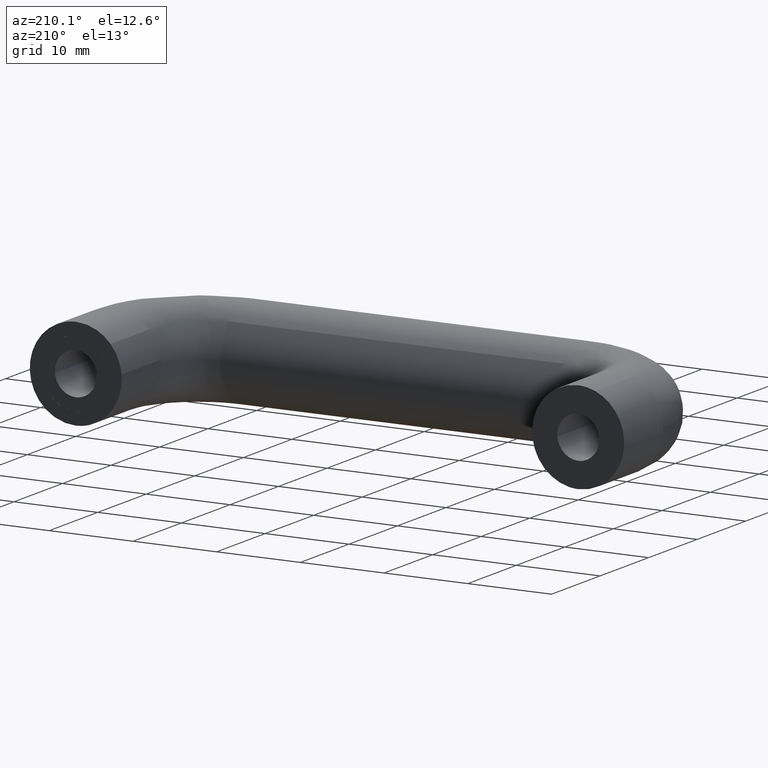
[diagram: clean part render]
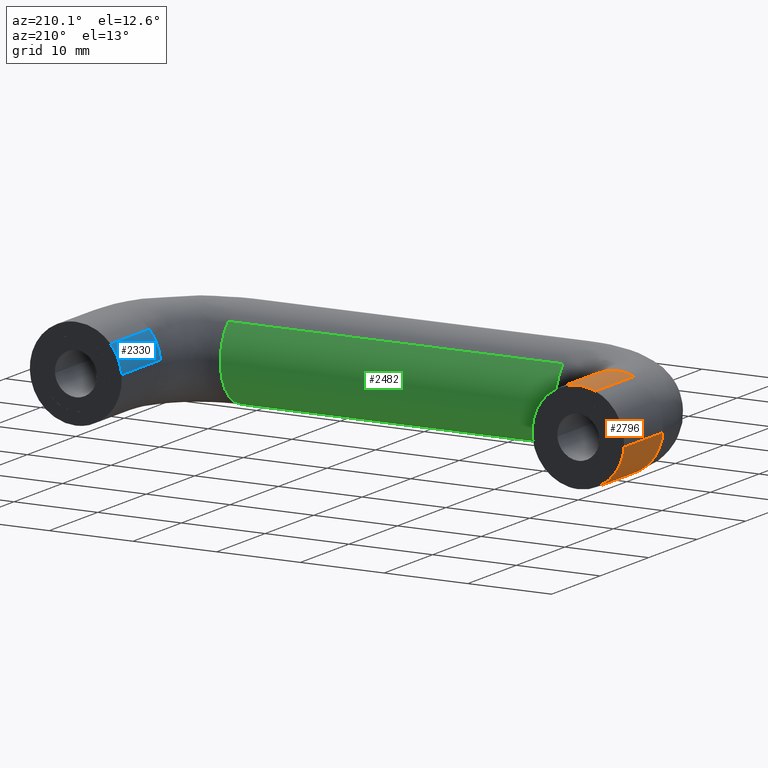
[diagram: same view with three faces highlighted in distinct colors, each labeled with its STEP entity id]
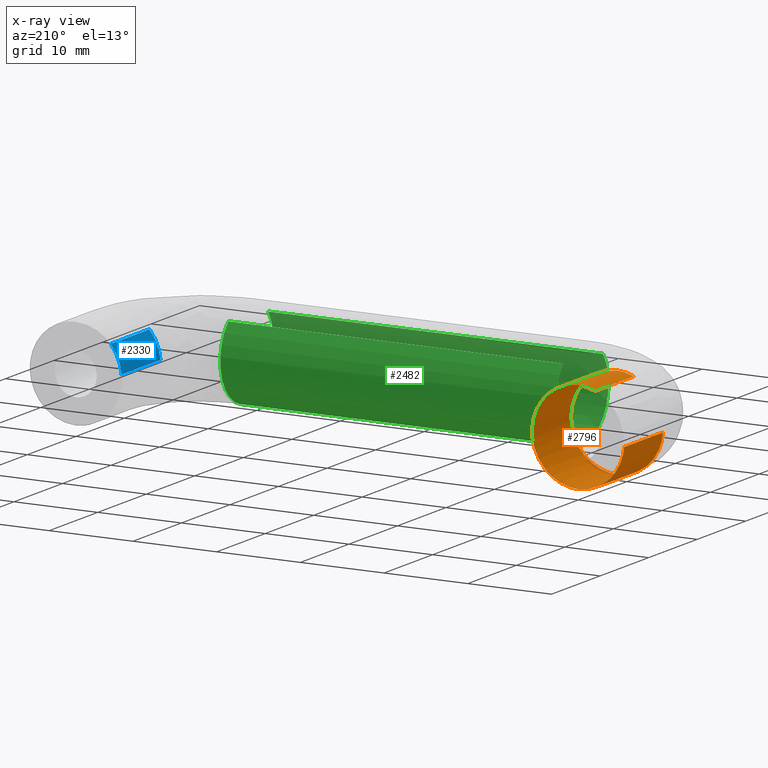
[diagram: x-ray of the same camera — body ghosted, the three highlighted faces saturated]
A machine part, auxiliary view with three faces highlighted in distinct colors.
The next image is the same camera in x-ray (body ghosted, the three faces saturated) — at least one of them is partly hidden behind the body in this view.
Their STEP definitions:

[orange] entity #2796 — the highlighted face is a freeform B-spline surface patch.
#2595=CARTESIAN_POINT('',(-5.483045884350225,-7.999999999999915,-0.431518052995605));
#2596=VERTEX_POINT('',#2595);
#2597=CARTESIAN_POINT('',(-2.023463087210743,-8.0,5.114254308762477));
#2598=VERTEX_POINT('',#2597);
#2614=CARTESIAN_POINT('',(-2.023463087210743,2.756342E-016,5.114254308762477));
#2615=VERTEX_POINT('',#2614);
#2616=CARTESIAN_POINT('',(-2.023463087210743,2.756342E-016,5.114254308762477));
#2617=CARTESIAN_POINT('',(-2.023463087210743,-8.0,5.114254308762477));
#2618=QUASI_UNIFORM_CURVE('',1,(#2616,#2617),.UNSPECIFIED.,.F.,.U.);
#2619=EDGE_CURVE('',#2615,#2598,#2618,.T.);
#2621=CARTESIAN_POINT('',(-5.483045877592216,-1.942890E-016,-0.431518138867010));
#2622=VERTEX_POINT('',#2621);
#2638=CARTESIAN_POINT('',(-5.483045877592216,-1.942890E-016,-0.431518138867010));
#2639=CARTESIAN_POINT('',(-5.483045884350225,-7.999999999999915,-0.431518052995605));
#2640=QUASI_UNIFORM_CURVE('',1,(#2638,#2639),.UNSPECIFIED.,.F.,.U.);
#2641=EDGE_CURVE('',#2622,#2596,#2640,.T.);
#2646=CARTESIAN_POINT('',(-5.483045335532202,0.200000000013632,-0.431525026503147));
#2647=CARTESIAN_POINT('',(-5.051520309029055,0.200000000013632,-5.914570362035350));
#2648=CARTESIAN_POINT('',(0.431525026503147,0.200000000013632,-5.483045335532202));
#2649=CARTESIAN_POINT('',(5.914570362035350,0.200000000013632,-5.051520309029055));
#2650=CARTESIAN_POINT('',(5.483045335532202,0.200000000013632,0.431525026503147));
#2651=CARTESIAN_POINT('',(5.051520309029055,0.200000000013632,5.914570362035350));
#2652=CARTESIAN_POINT('',(-0.431525026503147,0.200000000013632,5.483045335532202));
#2653=CARTESIAN_POINT('',(-1.255194154597745,0.200000000013632,5.418221169292411));
#2654=CARTESIAN_POINT('',(-2.023463087202897,0.200000000013632,5.114254308765579));
#2655=CARTESIAN_POINT('',(-5.483045335532202,-8.205000000559247,-0.431525026503147));
#2656=CARTESIAN_POINT('',(-5.051520309029055,-8.205000000559247,-5.914570362035350));
#2657=CARTESIAN_POINT('',(0.431525026503147,-8.205000000559247,-5.483045335532202));
#2658=CARTESIAN_POINT('',(5.914570362035350,-8.205000000559247,-5.051520309029055));
#2659=CARTESIAN_POINT('',(5.483045335532202,-8.205000000559247,0.431525026503147));
#2660=CARTESIAN_POINT('',(5.051520309029055,-8.205000000559247,5.914570362035350));
#2661=CARTESIAN_POINT('',(-0.431525026503147,-8.205000000559247,5.483045335532202));
#2662=CARTESIAN_POINT('',(-1.255194154597745,-8.205000000559247,5.418221169292411));
#2663=CARTESIAN_POINT('',(-2.023463087202897,-8.205000000559245,5.114254308765579));
#2671=(BOUNDED_SURFACE()B_SPLINE_SURFACE(2,1,((#2646,#2655),(#2647,#2656),(#2648,#2657),(#2649,#2658),(#2650,#2659),(#2651,#2660),(#2652,#2661),(#2653,#2662),(#2654,#2663)),.UNSPECIFIED.,.F.,.F.,.U.)B_SPLINE_SURFACE_WITH_KNOTS((3,2,2,2,3),(2,2),(0.0,9.112698372208087,18.225396744416170,27.338095116624260,29.160634791065881),(0.0,8.405000000572880),.UNSPECIFIED.)GEOMETRIC_REPRESENTATION_ITEM()RATIONAL_B_SPLINE_SURFACE(((1.0,1.0),(0.707106781186548,0.707106781186548),(1.0,1.0),(0.707106781186548,0.707106781186548),(1.0,1.0),(0.707106781186548,0.707106781186548),(1.0,1.0),(0.941421356237310,0.941421356237310),(0.906274169979695,0.906274169979695)))REPRESENTATION_ITEM('')SURFACE());
#2672=CARTESIAN_POINT('',(0.0,-8.0,5.500000000000000));
#2673=VERTEX_POINT('',#2672);
#2674=CARTESIAN_POINT('',(-2.023463087210743,-8.000000000000002,5.114254308762477));
#2675=CARTESIAN_POINT('',(-1.048500125959676,-8.0,5.499999999999999));
#2676=CARTESIAN_POINT('',(0.0,-8.0,5.500000000000000));
#2684=(BOUNDED_CURVE()B_SPLINE_CURVE(2,(#2674,#2675,#2676),.UNSPECIFIED.,.F.,.U.)B_SPLINE_CURVE_WITH_KNOTS((3,3),(0.437532549938979,0.500000000000000),.UNSPECIFIED.)CURVE()GEOMETRIC_REPRESENTATION_ITEM()RATIONAL_B_SPLINE_CURVE((0.890203187500792,0.926814829922236,1.0))REPRESENTATION_ITEM(''));
#2685=EDGE_CURVE('',#2598,#2673,#2684,.T.);
#2686=ORIENTED_EDGE('',*,*,#2685,.T.);
#2687=CARTESIAN_POINT('',(0.069113220069145,-8.000000000545274,5.499565743112056));
#2688=VERTEX_POINT('',#2687);
#2689=CARTESIAN_POINT('',(0.0,-8.0,5.500000000000000));
#2690=CARTESIAN_POINT('',(0.034557974666195,-8.0,5.500000000000000));
#2691=CARTESIAN_POINT('',(0.069113220069145,-8.000000000545274,5.499565743112056));
#2699=(BOUNDED_CURVE()B_SPLINE_CURVE(2,(#2689,#2690,#2691),.UNSPECIFIED.,.F.,.U.)B_SPLINE_CURVE_WITH_KNOTS((3,3),(0.500000000000000,0.502215704123727),.UNSPECIFIED.)CURVE()GEOMETRIC_REPRESENTATION_ITEM()RATIONAL_B_SPLINE_CURVE((1.0,0.997404141149054,0.994854295539392))REPRESENTATION_ITEM(''));
#2700=EDGE_CURVE('',#2673,#2688,#2699,.T.);
#2701=ORIENTED_EDGE('',*,*,#2700,.T.);
#2702=CARTESIAN_POINT('',(5.486611206121655,-8.000000000064009,-0.383532883675296));
#2703=VERTEX_POINT('',#2702);
#2704=CARTESIAN_POINT('',(0.069113220069145,-8.000000000545274,5.499565743112056));
#2705=CARTESIAN_POINT('',(5.500000000000001,-8.000000000000002,5.431315613086350));
#2706=CARTESIAN_POINT('',(5.500000000000000,-8.0,0.0));
#2707=CARTESIAN_POINT('',(5.500000000000000,-8.0,-0.192000137321335));
#2708=CARTESIAN_POINT('',(5.486611206121656,-8.000000000064009,-0.383532883675296));
#2716=(BOUNDED_CURVE()B_SPLINE_CURVE(2,(#2704,#2705,#2706,#2707,#2708),.UNSPECIFIED.,.F.,.U.)B_SPLINE_CURVE_WITH_KNOTS((3,2,3),(0.502215704123726,0.750000000000000,0.762166313465516),.UNSPECIFIED.)CURVE()GEOMETRIC_REPRESENTATION_ITEM()RATIONAL_B_SPLINE_CURVE((0.994854295539394,0.709702640037493,1.0,0.985746277151966,0.972879876385690))REPRESENTATION_ITEM(''));
#2717=EDGE_CURVE('',#2688,#2703,#2716,.T.);
#2718=ORIENTED_EDGE('',*,*,#2717,.T.);
#2719=CARTESIAN_POINT('',(0.0,-8.0,-5.500000000000000));
#2720=VERTEX_POINT('',#2719);
#2721=CARTESIAN_POINT('',(5.486611206121655,-8.000000000064009,-0.383532883675296));
#2722=CARTESIAN_POINT('',(5.128952659946982,-8.0,-5.500000000000000));
#2723=CARTESIAN_POINT('',(0.0,-8.0,-5.500000000000000));
#2731=(BOUNDED_CURVE()B_SPLINE_CURVE(2,(#2721,#2722,#2723),.UNSPECIFIED.,.F.,.U.)B_SPLINE_CURVE_WITH_KNOTS((3,3),(0.762166313465515,1.0),.UNSPECIFIED.)CURVE()GEOMETRIC_REPRESENTATION_ITEM()RATIONAL_B_SPLINE_CURVE((0.972879876385692,0.721360504034580,1.0))REPRESENTATION_ITEM(''));
#2732=EDGE_CURVE('',#2703,#2720,#2731,.T.);
#2733=ORIENTED_EDGE('',*,*,#2732,.T.);
#2734=CARTESIAN_POINT('',(0.0,-8.0,-5.500000000000000));
#2735=CARTESIAN_POINT('',(-5.084154190295137,-8.0,-5.500000000000001));
#2736=CARTESIAN_POINT('',(-5.483045884350226,-7.999999999999915,-0.431518052995605));
#2744=(BOUNDED_CURVE()B_SPLINE_CURVE(2,(#2734,#2735,#2736),.UNSPECIFIED.,.F.,.U.)B_SPLINE_CURVE_WITH_KNOTS((3,3),(0.0,0.236331518655793),.UNSPECIFIED.)CURVE()GEOMETRIC_REPRESENTATION_ITEM()RATIONAL_B_SPLINE_CURVE((1.0,0.723120403175333,0.969723811169684))REPRESENTATION_ITEM(''));
#2745=EDGE_CURVE('',#2720,#2596,#2744,.T.);
#2746=ORIENTED_EDGE('',*,*,#2745,.T.);
#2747=ORIENTED_EDGE('',*,*,#2641,.F.);
#2748=CARTESIAN_POINT('',(0.0,0.0,-5.500000000000000));
#2749=VERTEX_POINT('',#2748);
#2750=CARTESIAN_POINT('',(0.0,0.0,-5.500000000000000));
#2751=CARTESIAN_POINT('',(-5.084154110424680,0.0,-5.499999999999999));
#2752=CARTESIAN_POINT('',(-5.483045877592216,-1.942890E-016,-0.431518138867010));
#2760=(BOUNDED_CURVE()B_SPLINE_CURVE(2,(#2750,#2751,#2752),.UNSPECIFIED.,.F.,.U.)B_SPLINE_CURVE_WITH_KNOTS((3,3),(0.0,0.236331515971069),.UNSPECIFIED.)CURVE()GEOMETRIC_REPRESENTATION_ITEM()RATIONAL_B_SPLINE_CURVE((1.0,0.723120406320684,0.969723805566858))REPRESENTATION_ITEM(''));
#2761=EDGE_CURVE('',#2749,#2622,#2760,.T.);
#2762=ORIENTED_EDGE('',*,*,#2761,.F.);
#2763=CARTESIAN_POINT('',(0.0,0.0,5.500000000000000));
#2764=VERTEX_POINT('',#2763);
#2765=CARTESIAN_POINT('',(0.0,0.0,5.500000000000000));
#2766=CARTESIAN_POINT('',(5.500000000000001,0.0,5.500000000000001));
#2767=CARTESIAN_POINT('',(5.500000000000000,0.0,0.0));
#2768=CARTESIAN_POINT('',(5.500000000000001,0.0,-5.500000000000001));
#2769=CARTESIAN_POINT('',(0.0,0.0,-5.500000000000000));
#2777=(BOUNDED_CURVE()B_SPLINE_CURVE(2,(#2765,#2766,#2767,#2768,#2769),.UNSPECIFIED.,.F.,.U.)B_SPLINE_CURVE_WITH_KNOTS((3,2,3),(0.500000000000000,0.750000000000000,1.0),.UNSPECIFIED.)CURVE()GEOMETRIC_REPRESENTATION_ITEM()RATIONAL_B_SPLINE_CURVE((1.0,0.707106781186548,1.0,0.707106781186548,1.0))REPRESENTATION_ITEM(''));
#2778=EDGE_CURVE('',#2764,#2749,#2777,.T.);
#2779=ORIENTED_EDGE('',*,*,#2778,.F.);
#2780=CARTESIAN_POINT('',(-2.023463087210743,2.756342E-016,5.114254308762477));
#2781=CARTESIAN_POINT('',(-1.048500125959676,0.0,5.499999999999999));
#2782=CARTESIAN_POINT('',(0.0,0.0,5.500000000000000));
#2790=(BOUNDED_CURVE()B_SPLINE_CURVE(2,(#2780,#2781,#2782),.UNSPECIFIED.,.F.,.U.)B_SPLINE_CURVE_WITH_KNOTS((3,3),(0.437532549938979,0.500000000000000),.UNSPECIFIED.)CURVE()GEOMETRIC_REPRESENTATION_ITEM()RATIONAL_B_SPLINE_CURVE((0.890203187500792,0.926814829922236,1.0))REPRESENTATION_ITEM(''));
#2791=EDGE_CURVE('',#2615,#2764,#2790,.T.);
#2792=ORIENTED_EDGE('',*,*,#2791,.F.);
#2793=ORIENTED_EDGE('',*,*,#2619,.T.);
#2794=EDGE_LOOP('',(#2686,#2701,#2718,#2733,#2746,#2747,#2762,#2779,#2792,#2793));
#2795=FACE_OUTER_BOUND('',#2794,.T.);
#2796=ADVANCED_FACE('',(#2795),#2671,.T.);

[blue] entity #2330 — the highlighted face is a freeform B-spline surface patch.
#2143=CARTESIAN_POINT('',(55.850895645994413,-8.000000000000005,3.610392369199177));
#2144=VERTEX_POINT('',#2143);
#2205=CARTESIAN_POINT('',(54.525320908988661,-8.0,0.527151638945815));
#2206=VERTEX_POINT('',#2205);
#2222=CARTESIAN_POINT('',(54.525320908988661,1.387779E-017,0.527151638945817));
#2223=VERTEX_POINT('',#2222);
#2224=CARTESIAN_POINT('',(54.525320908988661,-8.0,0.527151638945815));
#2225=CARTESIAN_POINT('',(54.525320908988661,1.387779E-017,0.527151638945817));
#2226=QUASI_UNIFORM_CURVE('',1,(#2224,#2225),.UNSPECIFIED.,.F.,.U.);
#2227=EDGE_CURVE('',#2206,#2223,#2226,.T.);
#2263=CARTESIAN_POINT('',(55.850895649749503,1.614802E-017,3.610392373514570));
#2264=VERTEX_POINT('',#2263);
#2278=CARTESIAN_POINT('',(55.850895645994413,-8.000000000000005,3.610392369199177));
#2279=CARTESIAN_POINT('',(55.850895649749503,1.614802E-017,3.610392373514570));
#2280=QUASI_UNIFORM_CURVE('',1,(#2278,#2279),.UNSPECIFIED.,.F.,.U.);
#2281=EDGE_CURVE('',#2144,#2264,#2280,.T.);
#2286=CARTESIAN_POINT('',(54.525320908980518,-8.200000000051864,0.527151638861234));
#2287=CARTESIAN_POINT('',(54.694208296636504,-8.200000000051865,2.281114221495737));
#2288=CARTESIAN_POINT('',(55.850895957594979,-8.200000000051865,3.610392727294113));
#2289=CARTESIAN_POINT('',(54.525320908980518,0.205000000001297,0.527151638861234));
#2290=CARTESIAN_POINT('',(54.694208296636504,0.205000000001297,2.281114221495737));
#2291=CARTESIAN_POINT('',(55.850895957594979,0.205000000001297,3.610392727294113));
#2299=(BOUNDED_SURFACE()B_SPLINE_SURFACE(2,1,((#2286,#2289),(#2287,#2290),(#2288,#2291)),.UNSPECIFIED.,.F.,.F.,.U.)B_SPLINE_SURFACE_WITH_KNOTS((3,3),(2,2),(0.0,3.620233990688284),(0.0,8.405000000053162),.UNSPECIFIED.)GEOMETRIC_REPRESENTATION_ITEM()RATIONAL_B_SPLINE_SURFACE(((1.0,1.0),(0.882842712474619,0.882842712474619),(0.859411254969543,0.859411254969543)))REPRESENTATION_ITEM('')SURFACE());
#2300=CARTESIAN_POINT('',(55.850895645994399,-8.000000000000007,3.610392369199176));
#2301=CARTESIAN_POINT('',(54.694208246531517,-8.000000000000002,2.281113700567477));
#2302=CARTESIAN_POINT('',(54.525320908988661,-8.0,0.527151638945815));
#2310=(BOUNDED_CURVE()B_SPLINE_CURVE(2,(#2300,#2301,#2302),.UNSPECIFIED.,.F.,.U.)B_SPLINE_CURVE_WITH_KNOTS((3,3),(0.635463017383206,0.733348904760178),.UNSPECIFIED.)CURVE()GEOMETRIC_REPRESENTATION_ITEM()RATIONAL_B_SPLINE_CURVE((0.854579451612704,0.864178679991225,0.963582689682066))REPRESENTATION_ITEM(''));
#2311=EDGE_CURVE('',#2144,#2206,#2310,.T.);
#2312=ORIENTED_EDGE('',*,*,#2311,.F.);
#2313=ORIENTED_EDGE('',*,*,#2281,.T.);
#2314=CARTESIAN_POINT('',(55.850895649749503,1.614802E-017,3.610392373514570));
#2315=CARTESIAN_POINT('',(54.694208247136061,0.0,2.281113706846024));
#2316=CARTESIAN_POINT('',(54.525320908988661,1.387779E-017,0.527151638945817));
#2324=(BOUNDED_CURVE()B_SPLINE_CURVE(2,(#2314,#2315,#2316),.UNSPECIFIED.,.F.,.U.)B_SPLINE_CURVE_WITH_KNOTS((3,3),(0.635463017068957,0.733348904760177),.UNSPECIFIED.)CURVE()GEOMETRIC_REPRESENTATION_ITEM()RATIONAL_B_SPLINE_CURVE((0.854579451551070,0.864178679672103,0.963582689682066))REPRESENTATION_ITEM(''));
#2325=EDGE_CURVE('',#2264,#2223,#2324,.T.);
#2326=ORIENTED_EDGE('',*,*,#2325,.T.);
#2327=ORIENTED_EDGE('',*,*,#2227,.F.);
#2328=EDGE_LOOP('',(#2312,#2313,#2326,#2327));
#2329=FACE_OUTER_BOUND('',#2328,.T.);
#2330=ADVANCED_FACE('',(#2329),#2299,.T.);

[green] entity #2482 — the highlighted face is a freeform B-spline surface patch.
#2331=CARTESIAN_POINT('',(8.999999999830543,-22.341754562992683,3.376265290929044));
#2332=CARTESIAN_POINT('',(8.999999999830541,-25.348290784355065,-0.490031114443455));
#2333=CARTESIAN_POINT('',(8.999999999830541,-21.855000953649181,-3.922877470347999));
#2334=CARTESIAN_POINT('',(8.999999999830541,-17.932123483301183,-7.777878423997177));
#2335=CARTESIAN_POINT('',(8.999999999830541,-14.077122529652000,-3.855000953649177));
#2336=CARTESIAN_POINT('',(8.999999999830541,-10.222121576002824,0.067876516698822));
#2337=CARTESIAN_POINT('',(8.999999999830541,-14.144999046350820,3.922877470347999));
#2338=CARTESIAN_POINT('',(51.025000000554897,-22.341754562992683,3.376265290929044));
#2339=CARTESIAN_POINT('',(51.025000000554890,-25.348290784355065,-0.490031114443455));
#2340=CARTESIAN_POINT('',(51.025000000554897,-21.855000953649181,-3.922877470347999));
#2341=CARTESIAN_POINT('',(51.025000000554897,-17.932123483301183,-7.777878423997177));
#2342=CARTESIAN_POINT('',(51.025000000554897,-14.077122529652000,-3.855000953649177));
#2343=CARTESIAN_POINT('',(51.025000000554897,-10.222121576002824,0.067876516698822));
#2344=CARTESIAN_POINT('',(51.025000000554897,-14.144999046350820,3.922877470347999));
#2352=(BOUNDED_SURFACE()B_SPLINE_SURFACE(2,1,((#2331,#2338),(#2332,#2339),(#2333,#2340),(#2334,#2341),(#2335,#2342),(#2336,#2343),(#2337,#2344)),.UNSPECIFIED.,.F.,.F.,.U.)B_SPLINE_SURFACE_WITH_KNOTS((3,2,2,3),(2,2),(0.0,8.383682502431444,17.496380874639542,26.609079246847632),(0.0,42.025000000724361),.UNSPECIFIED.)GEOMETRIC_REPRESENTATION_ITEM()RATIONAL_B_SPLINE_SURFACE(((0.956886118190660,0.956886118190660),(0.730538238691624,0.730538238691624),(1.0,1.0),(0.707106781186548,0.707106781186548),(1.0,1.0),(0.707106781186548,0.707106781186548),(1.0,1.0)))REPRESENTATION_ITEM('')SURFACE());
#2353=CARTESIAN_POINT('',(50.000000000006551,-23.498263041057349,-0.138215524970261));
#2354=VERTEX_POINT('',#2353);
#2355=CARTESIAN_POINT('',(50.000000000000007,-22.341755019080448,3.376264704416581));
#2356=VERTEX_POINT('',#2355);
#2357=CARTESIAN_POINT('',(50.000000000006551,-23.498263041057349,-0.138215524970261));
#2358=CARTESIAN_POINT('',(49.999999999999993,-23.500000000000000,-0.069118676710507));
#2359=CARTESIAN_POINT('',(50.0,-23.500000000000000,0.0));
#2360=CARTESIAN_POINT('',(50.0,-23.500000000000000,1.886802887485410));
#2361=CARTESIAN_POINT('',(50.000000000000014,-22.341755019080448,3.376264704416581));
#2369=(BOUNDED_CURVE()B_SPLINE_CURVE(2,(#2357,#2358,#2359,#2360,#2361),.UNSPECIFIED.,.F.,.U.)B_SPLINE_CURVE_WITH_KNOTS((3,2,3),(0.245579891767777,0.250000000000000,0.356197783944040),.UNSPECIFIED.)CURVE()GEOMETRIC_REPRESENTATION_ITEM()RATIONAL_B_SPLINE_CURVE((0.989826157676986,0.994821521089441,1.0,0.875581556919098,0.856866817333872))REPRESENTATION_ITEM(''));
#2370=EDGE_CURVE('',#2354,#2356,#2369,.T.);
#2371=ORIENTED_EDGE('',*,*,#2370,.T.);
#2372=CARTESIAN_POINT('',(10.0,-22.341757417584599,3.376261620021094));
#2373=VERTEX_POINT('',#2372);
#2374=CARTESIAN_POINT('',(10.0,-22.341757417584599,3.376261620021094));
#2375=CARTESIAN_POINT('',(50.000000000000007,-22.341755019080448,3.376264704416581));
#2376=QUASI_UNIFORM_CURVE('',1,(#2374,#2375),.UNSPECIFIED.,.F.,.U.);
#2377=EDGE_CURVE('',#2373,#2356,#2376,.T.);
#2378=ORIENTED_EDGE('',*,*,#2377,.F.);
#2379=CARTESIAN_POINT('',(10.0,-18.0,-5.500000000000000));
#2380=VERTEX_POINT('',#2379);
#2381=CARTESIAN_POINT('',(10.0,-18.0,-5.500000000000000));
#2382=CARTESIAN_POINT('',(10.000000000000002,-23.500000000000004,-5.500000000000001));
#2383=CARTESIAN_POINT('',(10.0,-23.500000000000000,0.0));
#2384=CARTESIAN_POINT('',(10.0,-23.499999999999996,1.886801119172180));
#2385=CARTESIAN_POINT('',(10.000000000000002,-22.341757417584606,3.376261620021093));
#2393=(BOUNDED_CURVE()B_SPLINE_CURVE(2,(#2381,#2382,#2383,#2384,#2385),.UNSPECIFIED.,.F.,.U.)B_SPLINE_CURVE_WITH_KNOTS((3,2,3),(0.0,0.250000000000000,0.356197696798579),.UNSPECIFIED.)CURVE()GEOMETRIC_REPRESENTATION_ITEM()RATIONAL_B_SPLINE_CURVE((1.0,0.707106781186548,1.0,0.875581659016357,0.856866848048419))REPRESENTATION_ITEM(''));
#2394=EDGE_CURVE('',#2380,#2373,#2393,.T.);
#2395=ORIENTED_EDGE('',*,*,#2394,.F.);
#2396=CARTESIAN_POINT('',(10.000003859434910,-12.513388497737290,-0.383528647243836));
#2397=VERTEX_POINT('',#2396);
#2398=CARTESIAN_POINT('',(10.000003859434909,-12.513388497737287,-0.383528647243836));
#2399=CARTESIAN_POINT('',(10.000001929717454,-12.871043370107913,-5.500000000000058));
#2400=CARTESIAN_POINT('',(10.0,-18.0,-5.500000000000000));
#2408=(BOUNDED_CURVE()B_SPLINE_CURVE(2,(#2398,#2399,#2400),.UNSPECIFIED.,.F.,.U.)B_SPLINE_CURVE_WITH_KNOTS((3,3),(0.762166180670628,1.0),.UNSPECIFIED.)CURVE()GEOMETRIC_REPRESENTATION_ITEM()RATIONAL_B_SPLINE_CURVE((0.972880157258489,0.721360348455692,1.0))REPRESENTATION_ITEM(''));
#2409=EDGE_CURVE('',#2397,#2380,#2408,.T.);
#2410=ORIENTED_EDGE('',*,*,#2409,.F.);
#2411=CARTESIAN_POINT('',(10.000001797236219,-14.144999150298119,3.922877572459886));
#2412=VERTEX_POINT('',#2411);
#2413=CARTESIAN_POINT('',(10.000001797236218,-14.144999150298119,3.922877572459886));
#2414=CARTESIAN_POINT('',(10.000002908887463,-12.500000000034094,2.306341580973092));
#2415=CARTESIAN_POINT('',(10.000003727656191,-12.500000000003300,-4.959234E-014));
#2416=CARTESIAN_POINT('',(10.000003795816939,-12.500000000000741,-0.191998011343831));
#2417=CARTESIAN_POINT('',(10.000003859434909,-12.513388497737287,-0.383528647243836));
#2425=(BOUNDED_CURVE()B_SPLINE_CURVE(2,(#2413,#2414,#2415,#2416,#2417),.UNSPECIFIED.,.F.,.U.)B_SPLINE_CURVE_WITH_KNOTS((3,2,3),(0.623683234415282,0.750000000000000,0.762166180670628),.UNSPECIFIED.)CURVE()GEOMETRIC_REPRESENTATION_ITEM()RATIONAL_B_SPLINE_CURVE((0.853569641448807,0.852010703751151,1.0,0.985746432730855,0.972880157258489))REPRESENTATION_ITEM(''));
#2426=EDGE_CURVE('',#2412,#2397,#2425,.T.);
#2427=ORIENTED_EDGE('',*,*,#2426,.F.);
#2428=CARTESIAN_POINT('',(50.0,-14.144999225929190,3.922877646819151));
#2429=VERTEX_POINT('',#2428);
#2430=CARTESIAN_POINT('',(10.000001797236219,-14.144999150298119,3.922877572459886));
#2431=CARTESIAN_POINT('',(50.0,-14.144999225929190,3.922877646819151));
#2432=QUASI_UNIFORM_CURVE('',1,(#2430,#2431),.UNSPECIFIED.,.F.,.U.);
#2433=EDGE_CURVE('',#2412,#2429,#2432,.T.);
#2434=ORIENTED_EDGE('',*,*,#2433,.T.);
#2435=CARTESIAN_POINT('',(50.000000000537227,-17.861784474222301,-5.498263041037050));
#2436=VERTEX_POINT('',#2435);
#2437=CARTESIAN_POINT('',(50.0,-14.144999225929183,3.922877646819151));
#2438=CARTESIAN_POINT('',(50.0,-12.500000000000004,2.306341705718219));
#2439=CARTESIAN_POINT('',(50.0,-12.500000000000000,0.0));
#2440=CARTESIAN_POINT('',(50.0,-12.499999999999996,-5.363478317355516));
#2441=CARTESIAN_POINT('',(50.000000000537227,-17.861784474222297,-5.498263041037050));
#2449=(BOUNDED_CURVE()B_SPLINE_CURVE(2,(#2437,#2438,#2439,#2440,#2441),.UNSPECIFIED.,.F.,.U.)B_SPLINE_CURVE_WITH_KNOTS((3,2,3),(0.623683228594153,0.750000000000000,0.995579891716385),.UNSPECIFIED.)CURVE()GEOMETRIC_REPRESENTATION_ITEM()RATIONAL_B_SPLINE_CURVE((0.853569641592491,0.852010696931273,1.0,0.712285260157316,0.989826157560825))REPRESENTATION_ITEM(''));
#2450=EDGE_CURVE('',#2429,#2436,#2449,.T.);
#2451=ORIENTED_EDGE('',*,*,#2450,.T.);
#2452=CARTESIAN_POINT('',(50.0,-18.0,-5.500000000000000));
#2453=VERTEX_POINT('',#2452);
#2454=CARTESIAN_POINT('',(50.000000000537227,-17.861784474222297,-5.498263041037051));
#2455=CARTESIAN_POINT('',(50.0,-17.930881322481671,-5.500000000000000));
#2456=CARTESIAN_POINT('',(50.0,-18.0,-5.500000000000000));
#2464=(BOUNDED_CURVE()B_SPLINE_CURVE(2,(#2454,#2455,#2456),.UNSPECIFIED.,.F.,.U.)B_SPLINE_CURVE_WITH_KNOTS((3,3),(0.995579891716385,1.0),.UNSPECIFIED.)CURVE()GEOMETRIC_REPRESENTATION_ITEM()RATIONAL_B_SPLINE_CURVE((0.989826157560825,0.994821521029232,1.0))REPRESENTATION_ITEM(''));
#2465=EDGE_CURVE('',#2436,#2453,#2464,.T.);
#2466=ORIENTED_EDGE('',*,*,#2465,.T.);
#2467=CARTESIAN_POINT('',(50.0,-18.0,-5.500000000000000));
#2468=CARTESIAN_POINT('',(50.0,-23.363478318931307,-5.500000000000000));
#2469=CARTESIAN_POINT('',(50.000000000006544,-23.498263041057346,-0.138215524970261));
#2477=(BOUNDED_CURVE()B_SPLINE_CURVE(2,(#2467,#2468,#2469),.UNSPECIFIED.,.F.,.U.)B_SPLINE_CURVE_WITH_KNOTS((3,3),(0.0,0.245579891767777),.UNSPECIFIED.)CURVE()GEOMETRIC_REPRESENTATION_ITEM()RATIONAL_B_SPLINE_CURVE((1.0,0.712285260097106,0.989826157676986))REPRESENTATION_ITEM(''));
#2478=EDGE_CURVE('',#2453,#2354,#2477,.T.);
#2479=ORIENTED_EDGE('',*,*,#2478,.T.);
#2480=EDGE_LOOP('',(#2371,#2378,#2395,#2410,#2427,#2434,#2451,#2466,#2479));
#2481=FACE_OUTER_BOUND('',#2480,.T.);
#2482=ADVANCED_FACE('',(#2481),#2352,.T.);